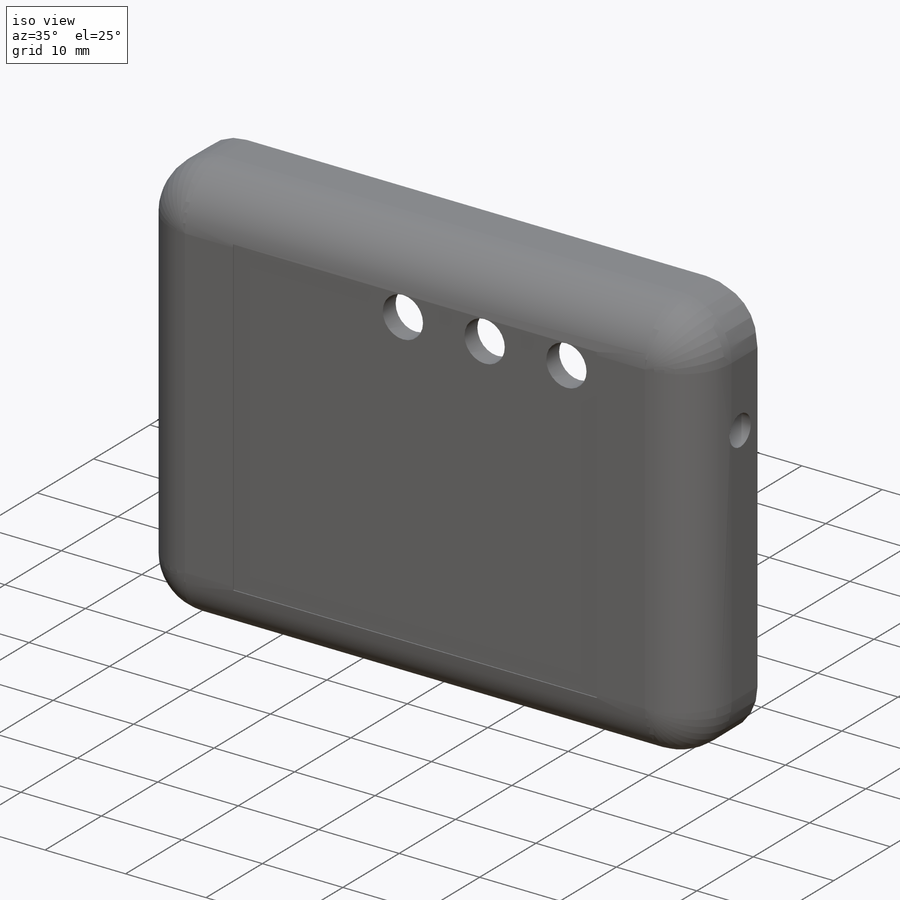
[diagram: iso view]
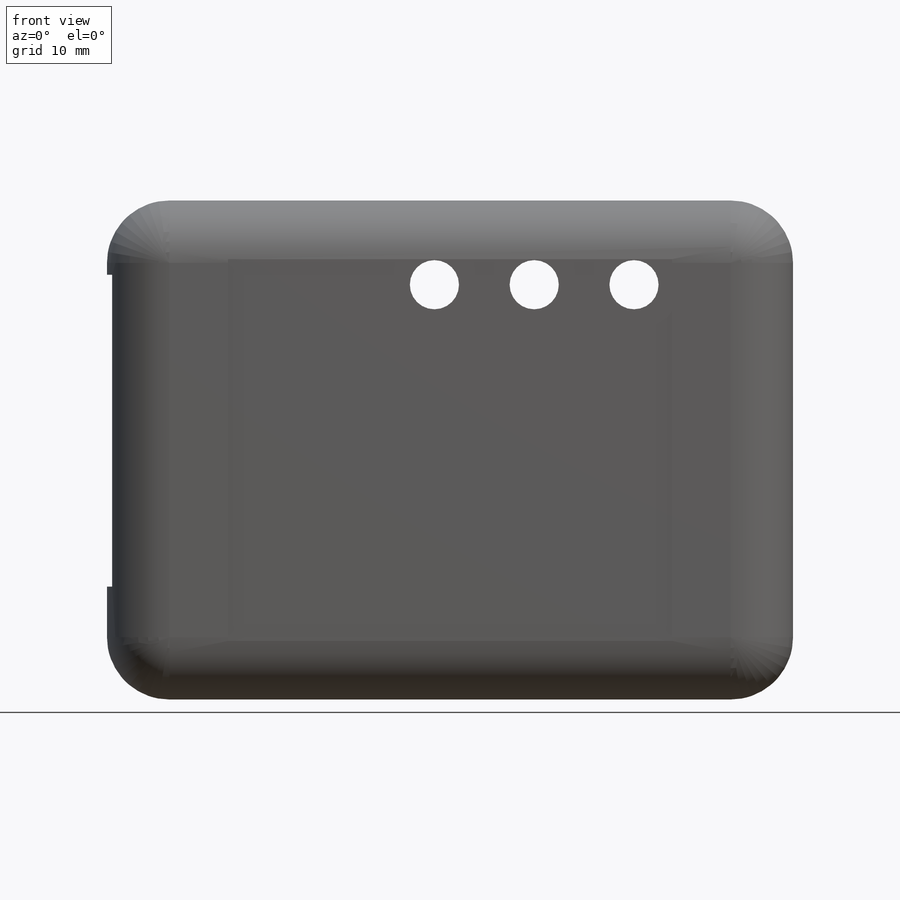
[diagram: front view]
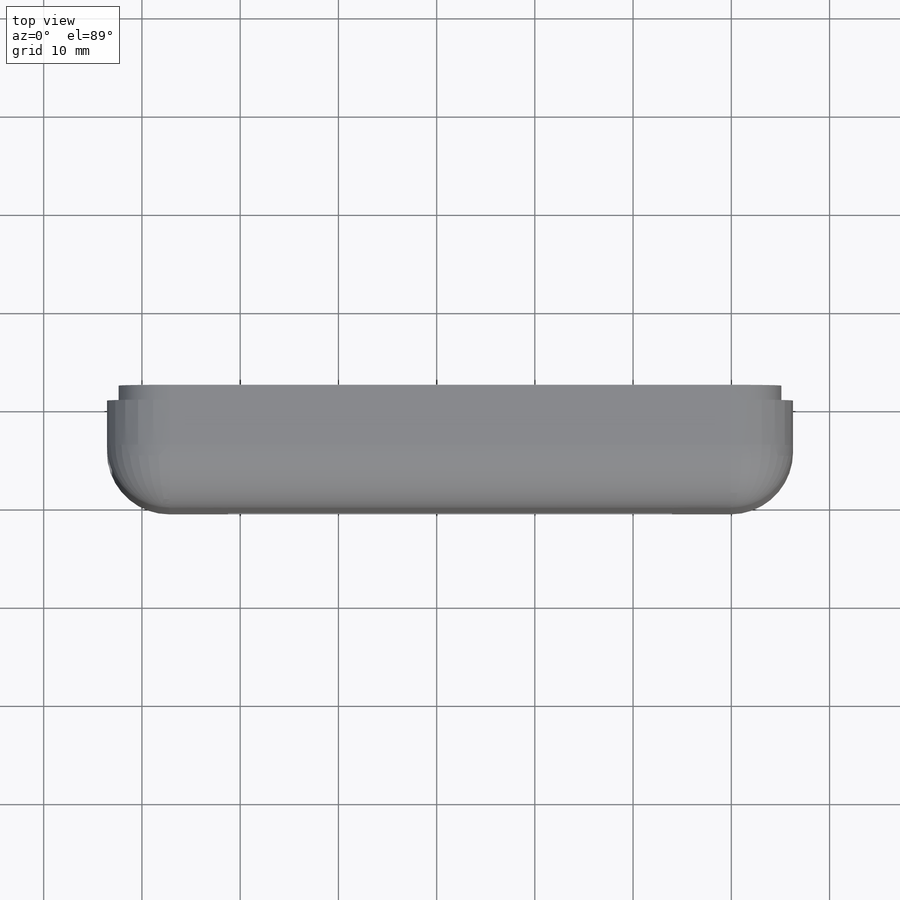
[diagram: top view]
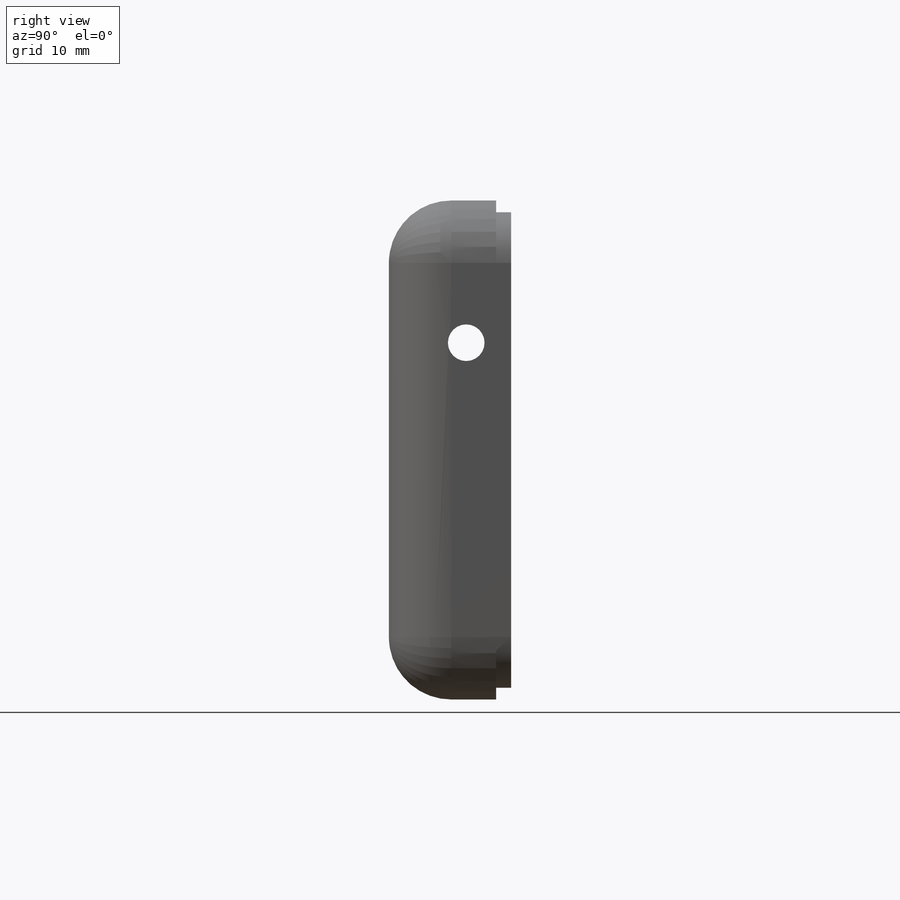
[diagram: right view]
SOLIDWORKS PART (.sldprt)
format: sldprt  version: not decoded by parser v0  size: 387,072 bytes
history: native  units: mm
features: sketch x15, plane x6, cut_extrude x5, fillet x4, hole x3, extrude x2, revolve x2, material x1 (+11 scaffold rows collapsed)
feature tree (49):
  scaffold x11  (default folders/planes/origin — collapsed)
  material  "ABS"
  plane  "Plane1"
  sketch  "Sketch1"
  extrude  "Boss-Extrude1"  Depth=10.922mm
  sketch  "Sketch2"
  extrude  "Boss-Extrude2"  Depth=1.524mm
  plane  "Plane2"  Offset=16.764mm
  sketch  "Sketch4"
  cut_extrude  "Cut-Extrude1"  Depth=7.111998mm
  sketch  "Sketch5"
  cut_extrude  "Cut-Extrude2"  Depth=1.397002mm
  plane  "Plane3"
  sketch  "Sketch6"
  cut_extrude  "Cut-Extrude3"  Depth=9.1567mm
  plane  "Plane4"  Offset=59.99952mm
  sketch  "Sketch7"
  cut_extrude  "Cut-Extrude4"  Depth=5.2197mm
  sketch  "Sketch8"
  cut_extrude  "Cut-Extrude5"  Depth=0.127mm
  plane  "Plane5"  Offset=5.6007mm
  sketch  "Sketch9"
  revolve  "Revolve1"  Angle=360deg
  plane  "Plane6"  Offset=40.5257mm
  sketch  "Sketch10"
  revolve  "Revolve2"  Angle=360deg
  hole  "Hole1"  Diameter=5.0038mm Depth=2.412998mm
  sketch  "Sketch12"
  sketch  "Sketch11"  dims[Diameter=5.0038mm Depth=~2.412998mm]
  hole  "M2 Clearance Hole1"  Diameter=2.286mm Depth=9.271mm
  sketch  "Sketch14"
  sketch  "Sketch13"  dims[hole-wizard template sketch: 46 standard entries collapsed; hole parameters kept: c15.Hole Dia.=2.286mm c15.Hole Depth=9.271mm c15.D3=~14.816244mm c15.Drill Angle=180.0deg]
  hole  "M3.5 Clearance Hole1"  Diameter=3.7338mm Depth=2.3368mm
  sketch  "Sketch16"
  sketch  "Sketch15"  dims[hole-wizard template sketch: 59 standard entries collapsed; hole parameters kept: c18.Thru Hole Dia.=3.7338mm c18.Thru Hole Depth=2.3368mm]
  fillet  "Fillet1"  Radius=4.0132mm
  fillet  "Fillet2"  Radius=1.27mm
  fillet  "Fillet3"  Radius=5.1562mm
  fillet  "Fillet4"  Radius=6.35mm
decode coverage: 19 of 31 modeling features carry decoded parameters
note: ~ marks probable driven/reference dimensions
note: suppression state not decoded; provenance and decode notes live in map.json
